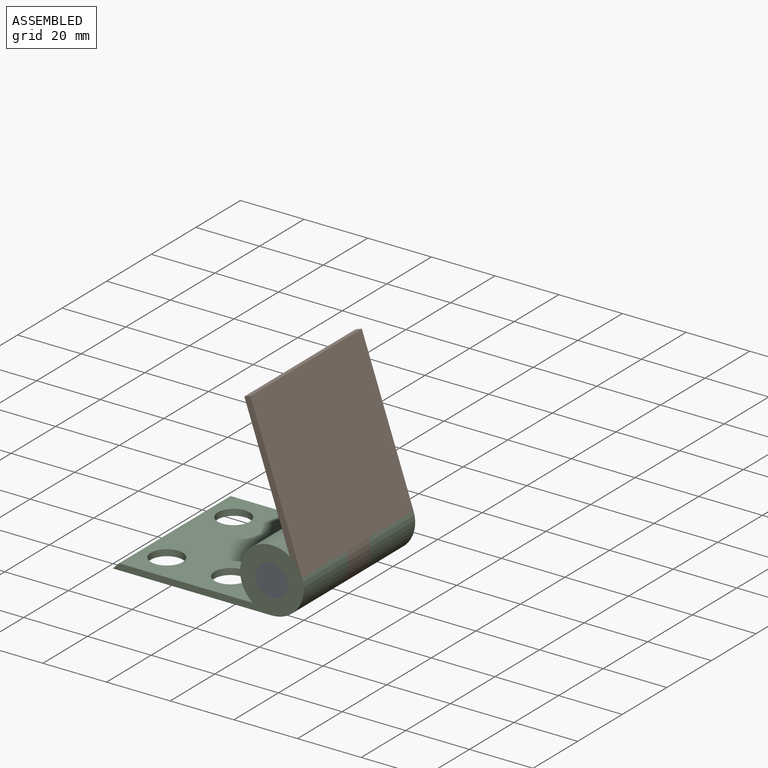
[diagram: assembled view]
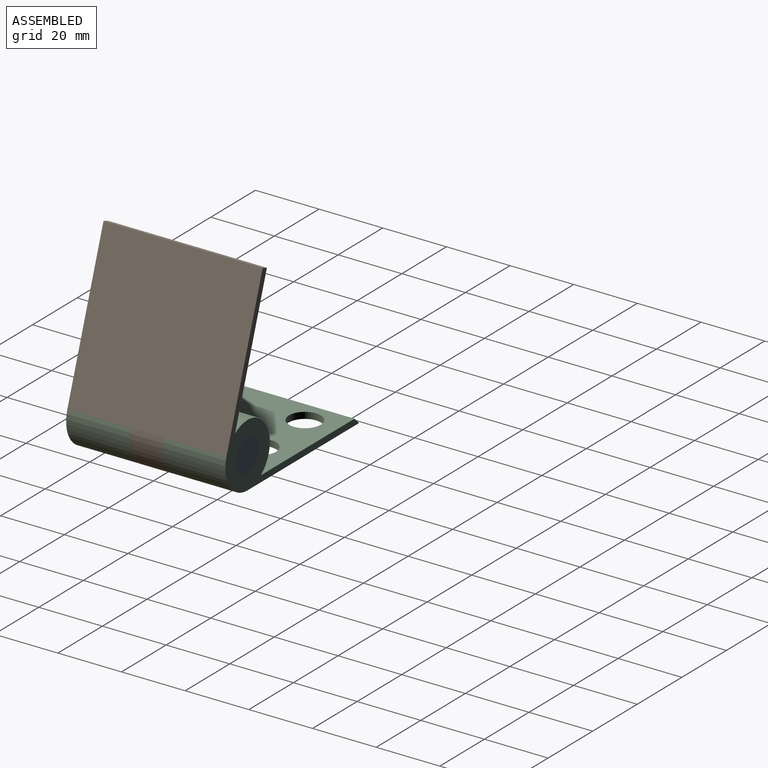
[diagram: assembled view, second angle]
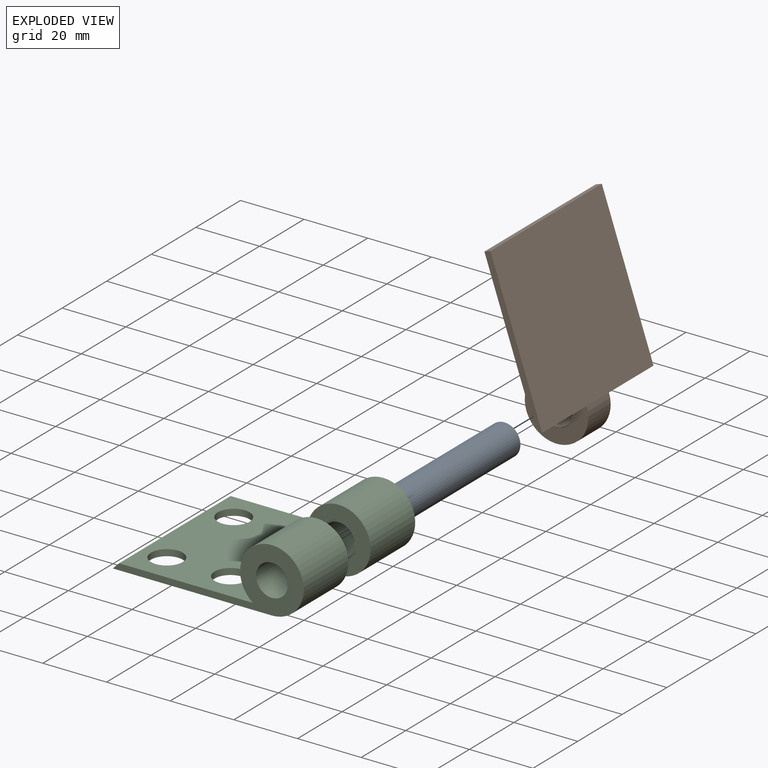
[diagram: exploded view]
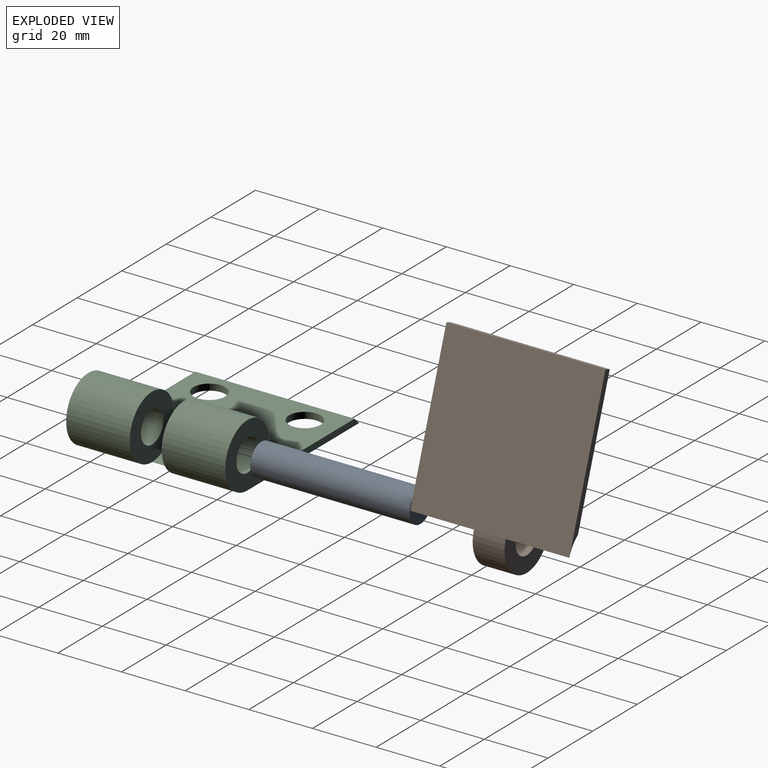
[diagram: exploded view, second angle]
ASSEMBLY  parts=3 mates=2
PART A: 3 faces, bbox 10x50x10 mm
  f0: cylinder r=5mm len=50mm, axis (0,1,0), area 1570.8mm2, adj f1,f2
  f1: plane 10x10mm, normal (0,-1,0), area 78.5mm2, adj f0
  f2: plane 10x10mm, normal (0,1,0), area 78.5mm2, adj f0
PART B: 11 faces, bbox 60x50x20 mm
  f0: cylinder r=10mm len=20mm, axis (0,1,0), area 564mm2, adj f2,f3,f6,f8
  f1: cylinder r=5mm len=10mm, axis (0,1,0), area 314.2mm2, adj f2,f3
  f2: plane 20x20mm, normal (0,-1,0), area 235.6mm2, adj f0,f1,f4
  f3: plane 20x20mm, normal (0,1,0), area 235.6mm2, adj f0,f1,f5
  f4: cylinder r=10mm len=20mm, axis (0,1,0), area 128.7mm2, adj f2,f6,f8,f9
  f5: cylinder r=10mm len=20mm, axis (0,1,0), area 128.7mm2, adj f3,f6,f8,f10
  f6: plane 50x50mm, normal (0,0,-1), area 2500mm2, adj f0,f4,f5,f7,f9,f10
  f7: plane 50x2mm, normal (1,0,0), area 100mm2, adj f6,f8,f9,f10
  f8: plane 50x44mm, normal (0,0,1), area 2200mm2, adj f0,f4,f5,f7,f9,f10
  f9: plane 50x2mm, normal (0,-1,0), area 91.8mm2, adj f4,f6,f7,f8
  f10: plane 50x2mm, normal (0,1,0), area 91.8mm2, adj f5,f6,f7,f8
PART C: 16 faces, bbox 60x50x20 mm
  f0: cylinder r=10mm len=20mm, axis (0,1,0), area 1127.9mm2, adj f2,f4,f7,f10
  f1: cylinder r=5mm len=20mm, axis (0,1,0), area 628.3mm2, adj f7,f10
  f2: plane 50x50mm, normal (0,0,-1), area 2185.8mm2, adj f0,f3,f6,f7,f8,f11,f12,f13
  f3: cylinder r=10mm len=20mm, axis (0,1,0), area 1127.9mm2, adj f2,f4,f6,f9
  f4: plane 50x42mm, normal (0,0,1), area 1785.8mm2, adj f0,f3,f6,f7,f8,f11,f12,f13
  f5: cylinder r=5mm len=20mm, axis (0,1,0), area 628.3mm2, adj f6,f9
  f6: plane 60x20mm, normal (0,-1,0), area 325.4mm2, adj f2,f3,f4,f5,f15
  f7: plane 60x20mm, normal (0,1,0), area 325.4mm2, adj f0,f1,f2,f4,f15
  f8: cylinder r=10mm len=10mm, axis (0,1,0), area 64.4mm2, adj f2,f4,f9,f10
  f9: plane 20x20mm, normal (0,1,0), area 235.6mm2, adj f3,f5,f8
  f10: plane 20x20mm, normal (0,-1,0), area 235.6mm2, adj f0,f1,f8
  f11: cylinder r=5mm len=10mm, axis (0,0,1), area 62.8mm2, adj f2,f4
  f12: cylinder r=5mm len=10mm, axis (0,0,1), area 62.8mm2, adj f2,f4
  f13: cylinder r=5mm len=10mm, axis (0,0,1), area 62.8mm2, adj f2,f4
  f14: cylinder r=5mm len=10mm, axis (0,0,1), area 62.8mm2, adj f2,f4
  f15: plane 50x2mm, normal (-0.71,0,0.71), area 141.4mm2, adj f2,f4,f6,f7
PLACE A t=(33.45,0,-39.76)mm
PLACE B rot(axis=(0,-1,0),108.9deg) t=(33.45,0,-39.76)mm
PLACE C t=(33.45,0,-39.76)mm
MATE cylindrical C.f8 <-> B.f0  axis (0,-1,0) through (33.45,5,-39.76)mm
MATE revolute A.f0 <-> C.f1  axis (0,1,0) through (33.45,-25,-39.76)mm
